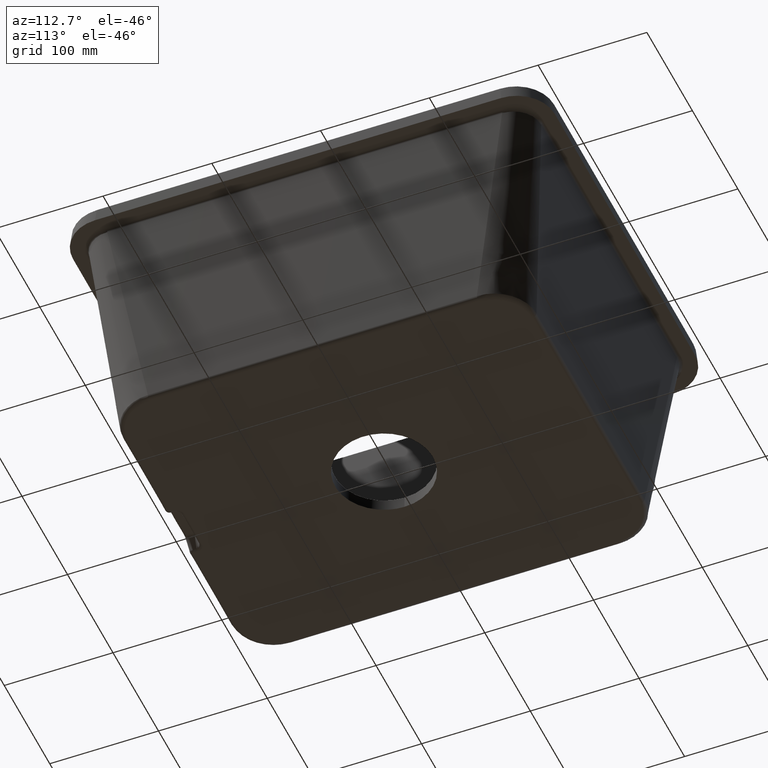
[diagram: clean part render]
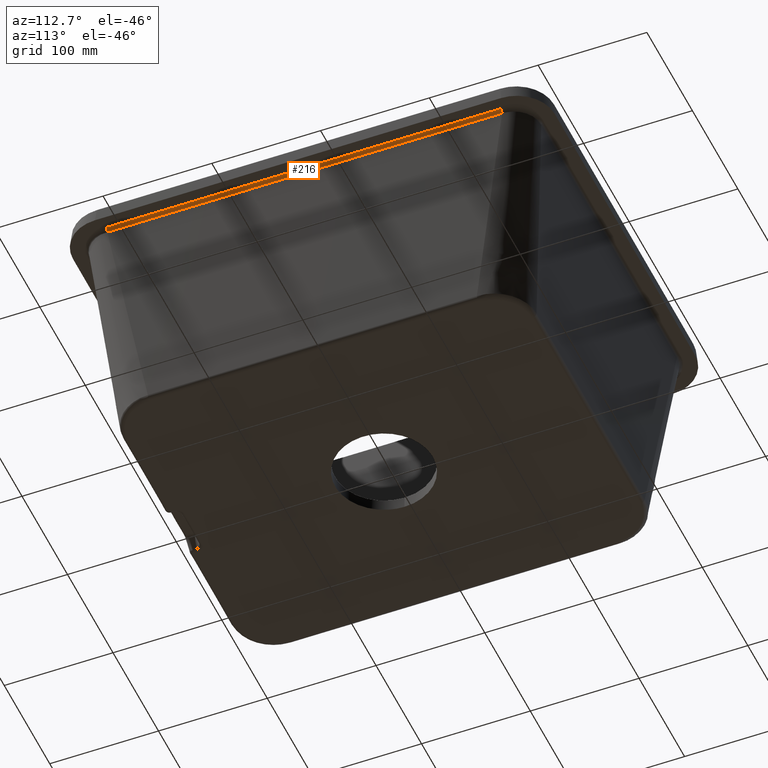
[diagram: same view with one face highlighted and labeled with its STEP entity id]
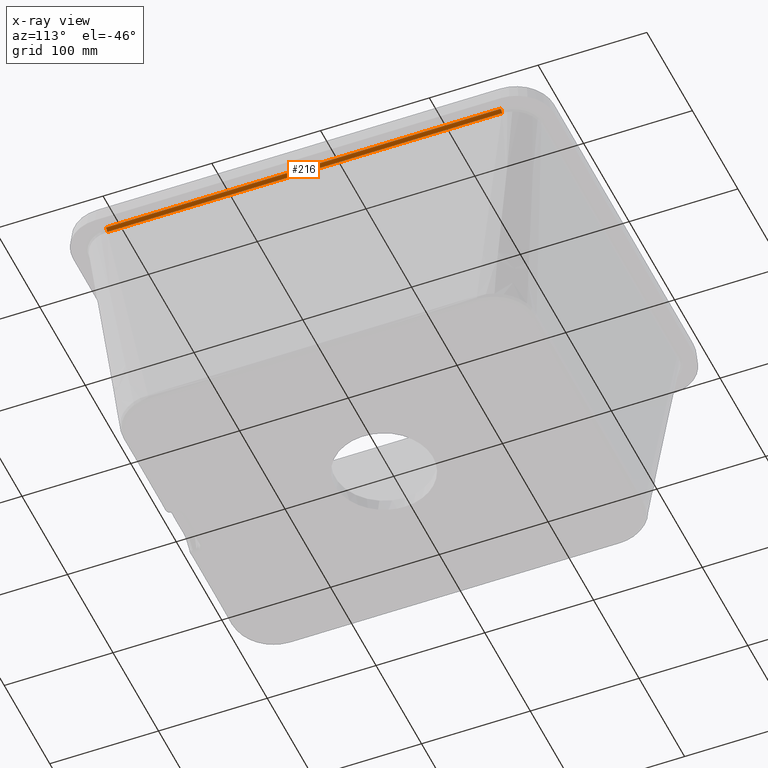
[diagram: x-ray of the same camera — body ghosted, the highlighted face saturated]
A machine part, auxiliary view. The second image highlights one B-rep face of the part: STEP entity #216.
The next image is the same camera in x-ray: the body ghosted, the highlighted face saturated — about 0% of this face is hidden behind the body in this view.
In plain terms, the highlighted cylindrical surface (edge-blend (fillet) strip) has radius 3 mm, axis along (0, -1, 0).
Its self-contained STEP definition (entity closure, byte-faithful):
#73=LINE('',#3548,#97);
#97=VECTOR('',#1508,1.);
#118=CYLINDRICAL_SURFACE('',#1384,2.99999999999897);
#216=ADVANCED_FACE('',(#341),#118,.F.);
#341=FACE_OUTER_BOUND('',#431,.T.);
#431=EDGE_LOOP('',(#714,#715,#716,#717));
#496=CIRCLE('',#1381,3.);
#498=CIRCLE('',#1383,3.);
#714=ORIENTED_EDGE('',*,*,#1156,.T.);
#715=ORIENTED_EDGE('',*,*,#1152,.T.);
#716=ORIENTED_EDGE('',*,*,#1160,.F.);
#717=ORIENTED_EDGE('',*,*,#1161,.F.);
#992=VERTEX_POINT('',#3440);
#994=VERTEX_POINT('',#3452);
#996=VERTEX_POINT('',#3468);
#999=VERTEX_POINT('',#3547);
#1152=EDGE_CURVE('',#994,#992,#1297,.T.);
#1156=EDGE_CURVE('',#996,#994,#496,.T.);
#1160=EDGE_CURVE('',#999,#992,#498,.T.);
#1161=EDGE_CURVE('',#996,#999,#73,.T.);
#1297=B_SPLINE_CURVE_WITH_KNOTS('',3,(#3442,#3443,#3444,#3445,#3446,#3447,
#3448,#3449,#3450,#3451),.UNSPECIFIED.,.F.,.F.,(4,2,2,2,4),(0.,0.652864823991823,
0.917348767617101,0.98346975352342,1.),.UNSPECIFIED.);
#1381=AXIS2_PLACEMENT_3D('',#3467,#1502,#1503);
#1383=AXIS2_PLACEMENT_3D('',#3546,#1506,#1507);
#1384=AXIS2_PLACEMENT_3D('',#3549,#1509,#1510);
#1502=DIRECTION('',(1.48595186162146E-13,-1.,0.));
#1503=DIRECTION('',(1.,1.48029736616688E-13,0.));
#1506=DIRECTION('',(-2.32179978378353E-15,-1.,0.));
#1507=DIRECTION('',(1.,-2.31296463463574E-15,0.));
#1508=DIRECTION('',(0.,1.,0.));
#1509=DIRECTION('',(0.,-1.,0.));
#1510=DIRECTION('',(0.,0.,-1.));
#3440=CARTESIAN_POINT('',(174.47662521934,-27.5145028274378,-15.738532771757));
#3442=CARTESIAN_POINT('',(174.47662521934,-390.485497149926,-15.7385327717571));
#3443=CARTESIAN_POINT('',(174.47662521934,-311.495165709097,-15.7385327717571));
#3444=CARTESIAN_POINT('',(174.47662521934,-232.504834268267,-15.738532771757));
#3445=CARTESIAN_POINT('',(174.47662521934,-121.514502827438,-15.738532771757));
#3446=CARTESIAN_POINT('',(174.47662521934,-89.5145028274378,-15.738532771757));
#3447=CARTESIAN_POINT('',(174.47662521934,-49.5145028274378,-15.738532771757));
#3448=CARTESIAN_POINT('',(174.47662521934,-41.5145028274378,-15.738532771757));
#3449=CARTESIAN_POINT('',(174.47662521934,-31.5145028274378,-15.738532771757));
#3450=CARTESIAN_POINT('',(174.47662521934,-29.5145028274378,-15.738532771757));
#3451=CARTESIAN_POINT('',(174.47662521934,-27.5145028274378,-15.738532771757));
#3452=CARTESIAN_POINT('',(174.47662521934,-390.485497149926,-15.7385327717571));
#3467=CARTESIAN_POINT('',(177.465209313615,-390.485497149926,-16.));
#3468=CARTESIAN_POINT('',(177.465209313615,-390.485497149926,-13.));
#3546=CARTESIAN_POINT('',(177.465209313615,-27.5145028274378,-16.));
#3547=CARTESIAN_POINT('',(177.465209313615,-27.5145028274378,-13.));
#3548=CARTESIAN_POINT('',(177.465209313615,-208.999999988682,-13.));
#3549=CARTESIAN_POINT('',(177.465209313615,-27.5145028274378,-15.999999999999));